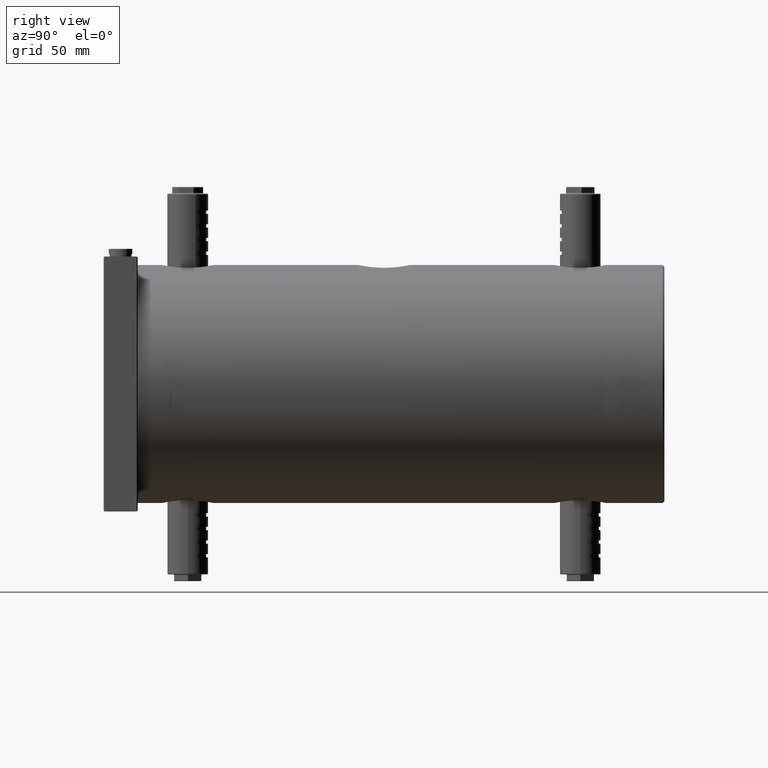
[diagram: clean part render]
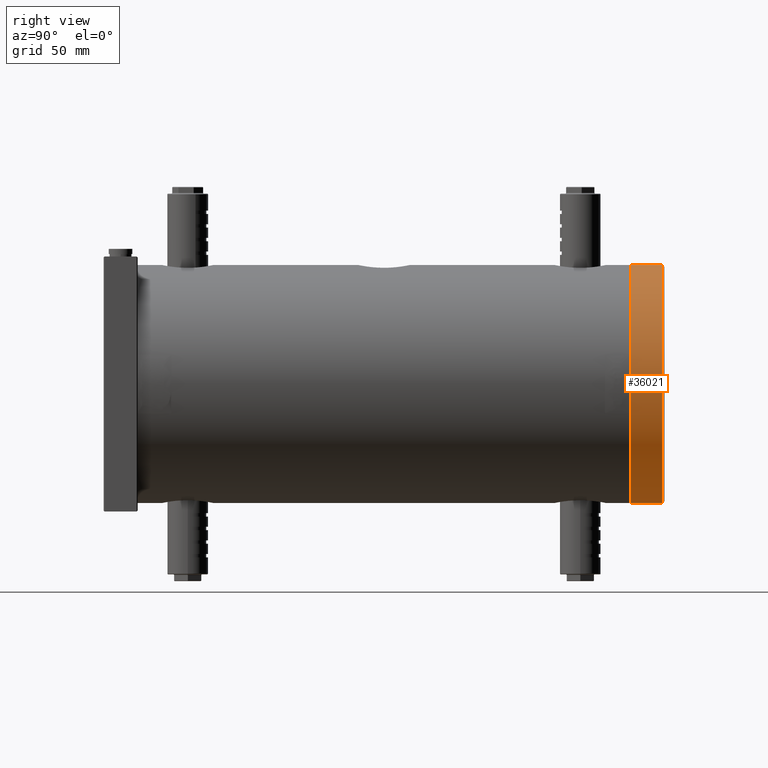
[diagram: same view with one face highlighted and labeled with its STEP entity id]
A machine part, right view. The second image highlights one B-rep face of the part: STEP entity #36021.
In plain terms, the highlighted cylindrical surface (partial cylindrical patch) has radius 70 mm, axis along (0, -1, 0).
Its self-contained STEP definition (entity closure, byte-faithful):
#2273 = CARTESIAN_POINT ( 'NONE',  ( 8.572527594031473000E-015, 330.0000000000000000, 70.00000000000000000 ) ) ;
#2698 = DIRECTION ( 'NONE',  ( -0.0000000000000000000, -1.000000000000000000, -0.0000000000000000000 ) ) ;
#2712 = EDGE_CURVE ( 'NONE', #28947, #13013, #38942, .T. ) ;
#2749 = CARTESIAN_POINT ( 'NONE',  ( 0.0000000000000000000, 329.0000000000000000, -70.00000000000000000 ) ) ;
#2930 = DIRECTION ( 'NONE',  ( 0.0000000000000000000, -1.000000000000000000, 0.0000000000000000000 ) ) ;
#3367 = CARTESIAN_POINT ( 'NONE',  ( 0.0000000000000000000, 330.0000000000000000, 0.0000000000000000000 ) ) ;
#6434 = DIRECTION ( 'NONE',  ( 0.0000000000000000000, 0.0000000000000000000, -1.000000000000000000 ) ) ;
#6483 = DIRECTION ( 'NONE',  ( 0.0000000000000000000, 0.0000000000000000000, 1.000000000000000000 ) ) ;
#8648 = DIRECTION ( 'NONE',  ( 0.0000000000000000000, 1.000000000000000000, 0.0000000000000000000 ) ) ;
#9039 = EDGE_CURVE ( 'NONE', #30991, #32688, #9643, .T. ) ;
#9643 = LINE ( 'NONE', #2273, #43172 ) ;
#9840 = AXIS2_PLACEMENT_3D ( 'NONE', #15804, #8648, #28995 ) ;
#11494 = DIRECTION ( 'NONE',  ( 0.0000000000000000000, -1.000000000000000000, 0.0000000000000000000 ) ) ;
#13013 = VERTEX_POINT ( 'NONE', #18063 ) ;
#15214 = EDGE_CURVE ( 'NONE', #32688, #13013, #33360, .T. ) ;
#15377 = VECTOR ( 'NONE', #11494, 1000.000000000000000 ) ;
#15804 = CARTESIAN_POINT ( 'NONE',  ( 0.0000000000000000000, 310.0000000000000000, 0.0000000000000000000 ) ) ;
#17275 = AXIS2_PLACEMENT_3D ( 'NONE', #3367, #20130, #6434 ) ;
#18063 = CARTESIAN_POINT ( 'NONE',  ( 0.0000000000000000000, 310.0000000000000000, -70.00000000000000000 ) ) ;
#19241 = EDGE_LOOP ( 'NONE', ( #22834, #40446, #31198, #24767 ) ) ;
#20130 = DIRECTION ( 'NONE',  ( 0.0000000000000000000, -1.000000000000000000, 0.0000000000000000000 ) ) ;
#22834 = ORIENTED_EDGE ( 'NONE', *, *, #24589, .T. ) ;
#24589 = EDGE_CURVE ( 'NONE', #28947, #30991, #35644, .T. ) ;
#24767 = ORIENTED_EDGE ( 'NONE', *, *, #2712, .F. ) ;
#27275 = CYLINDRICAL_SURFACE ( 'NONE', #17275, 70.00000000000000000 ) ;
#28947 = VERTEX_POINT ( 'NONE', #2749 ) ;
#28995 = DIRECTION ( 'NONE',  ( 0.0000000000000000000, 0.0000000000000000000, 1.000000000000000000 ) ) ;
#30991 = VERTEX_POINT ( 'NONE', #35276 ) ;
#31198 = ORIENTED_EDGE ( 'NONE', *, *, #15214, .T. ) ;
#32688 = VERTEX_POINT ( 'NONE', #36908 ) ;
#33360 = CIRCLE ( 'NONE', #9840, 70.00000000000000000 ) ;
#35276 = CARTESIAN_POINT ( 'NONE',  ( 8.572527594031473000E-015, 329.0000000000000000, 70.00000000000000000 ) ) ;
#35644 = CIRCLE ( 'NONE', #35848, 70.00000000000000000 ) ;
#35848 = AXIS2_PLACEMENT_3D ( 'NONE', #39842, #2698, #6483 ) ;
#36021 = ADVANCED_FACE ( 'NONE', ( #42489 ), #27275, .T. ) ;
#36908 = CARTESIAN_POINT ( 'NONE',  ( 8.572527594031473000E-015, 310.0000000000000000, 70.00000000000000000 ) ) ;
#38312 = CARTESIAN_POINT ( 'NONE',  ( 0.0000000000000000000, 330.0000000000000000, -70.00000000000000000 ) ) ;
#38942 = LINE ( 'NONE', #38312, #15377 ) ;
#39842 = CARTESIAN_POINT ( 'NONE',  ( 0.0000000000000000000, 329.0000000000000000, 0.0000000000000000000 ) ) ;
#40446 = ORIENTED_EDGE ( 'NONE', *, *, #9039, .T. ) ;
#42489 = FACE_OUTER_BOUND ( 'NONE', #19241, .T. ) ;
#43172 = VECTOR ( 'NONE', #2930, 1000.000000000000000 ) ;